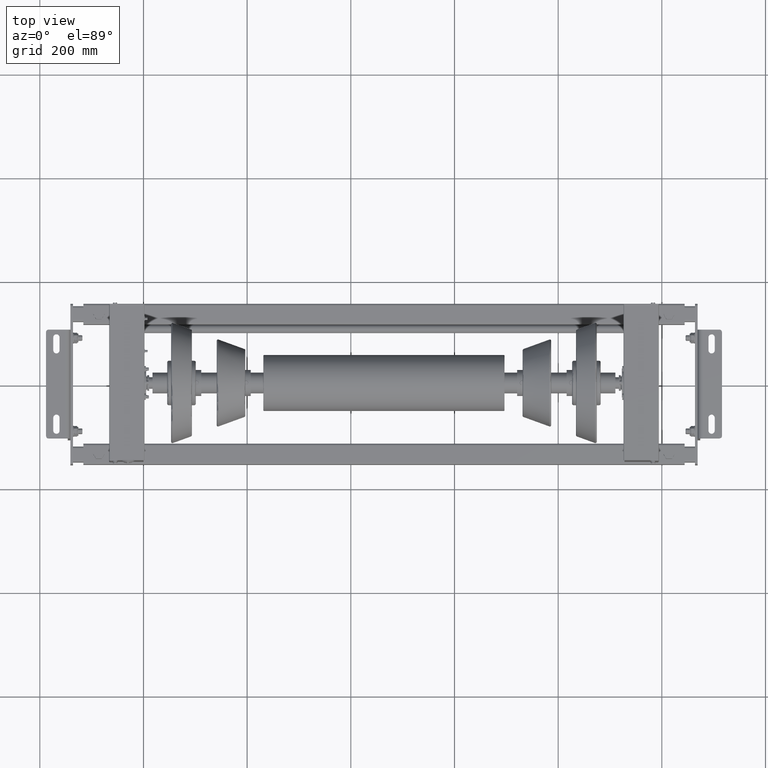
[diagram: clean part render]
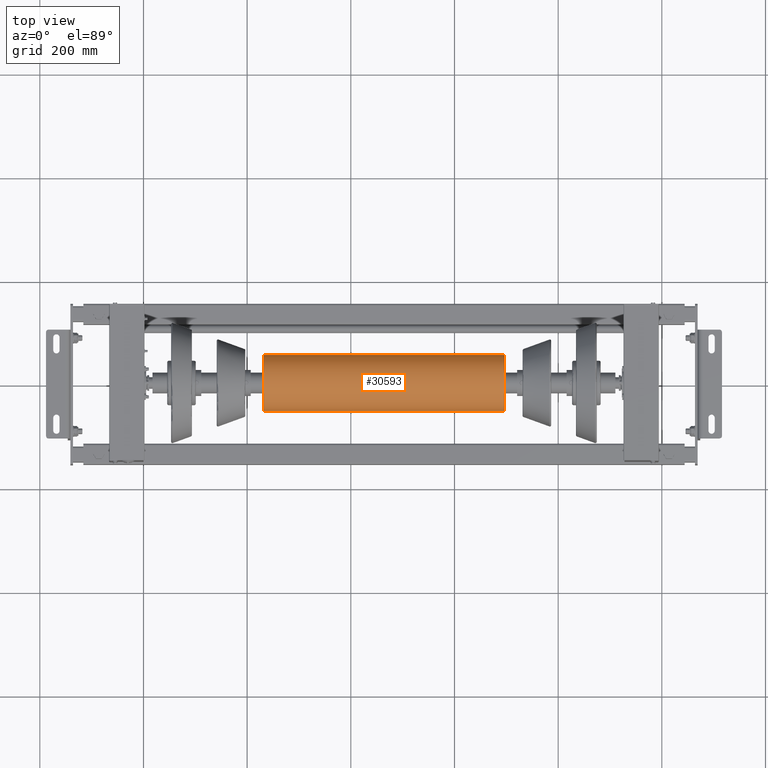
[diagram: same view with one face highlighted and labeled with its STEP entity id]
A machine part, top view. The second image highlights one B-rep face of the part: STEP entity #30593.
In plain terms, the highlighted cylindrical surface (edge-blend (fillet) strip) has radius 54 mm, axis along (1, 0, -0).
Its self-contained STEP definition (entity closure, byte-faithful):
#30419=CARTESIAN_POINT('',(231.500000000000000,-6.613093E-015,53.999999999999972));
#30420=VERTEX_POINT('',#30419);
#30428=CARTESIAN_POINT('',(231.500000000000000,-53.999999999999943,-6.613093E-015));
#30429=VERTEX_POINT('',#30428);
#30430=CARTESIAN_POINT('',(231.500000000000000,0.0,0.0));
#30431=DIRECTION('',(1.0,0.0,0.0));
#30432=DIRECTION('',(0.0,1.0,0.0));
#30433=AXIS2_PLACEMENT_3D('',#30430,#30431,#30432);
#30434=CIRCLE('',#30433,53.999999999999972);
#30435=EDGE_CURVE('',#30420,#30429,#30434,.T.);
#30452=CARTESIAN_POINT('',(231.500000000000000,53.999999999999972,0.0));
#30453=VERTEX_POINT('',#30452);
#30454=CARTESIAN_POINT('',(-231.499999999999970,53.999999999999915,0.0));
#30455=VERTEX_POINT('',#30454);
#30456=CARTESIAN_POINT('',(231.500000000000000,53.999999999999972,0.0));
#30457=DIRECTION('',(-1.0,0.0,0.0));
#30458=VECTOR('',#30457,463.0);
#30459=LINE('',#30456,#30458);
#30460=EDGE_CURVE('',#30453,#30455,#30459,.T.);
#30470=CARTESIAN_POINT('',(-231.499999999999940,-53.999999999999943,-6.613093E-015));
#30471=VERTEX_POINT('',#30470);
#30472=CARTESIAN_POINT('',(231.500000000000000,-53.999999999999943,-6.613093E-015));
#30473=DIRECTION('',(-1.0,0.0,0.0));
#30474=VECTOR('',#30473,462.999999999999940);
#30475=LINE('',#30472,#30474);
#30476=EDGE_CURVE('',#30429,#30471,#30475,.T.);
#30512=CARTESIAN_POINT('',(-231.499999999999970,-6.613093E-015,53.999999999999915));
#30513=VERTEX_POINT('',#30512);
#30514=CARTESIAN_POINT('',(-231.499999999999970,0.0,0.0));
#30515=DIRECTION('',(1.0,0.0,0.0));
#30516=DIRECTION('',(0.0,1.0,0.0));
#30517=AXIS2_PLACEMENT_3D('',#30514,#30515,#30516);
#30518=CIRCLE('',#30517,53.999999999999915);
#30519=EDGE_CURVE('',#30513,#30471,#30518,.T.);
#30563=CARTESIAN_POINT('',(-231.499999999999970,0.0,0.0));
#30564=DIRECTION('',(1.0,0.0,0.0));
#30565=DIRECTION('',(0.0,1.0,0.0));
#30566=AXIS2_PLACEMENT_3D('',#30563,#30564,#30565);
#30567=CIRCLE('',#30566,53.999999999999915);
#30568=EDGE_CURVE('',#30455,#30513,#30567,.T.);
#30574=CARTESIAN_POINT('',(0.0,0.0,0.0));
#30575=DIRECTION('',(1.0,0.0,0.0));
#30576=DIRECTION('',(0.0,1.0,0.0));
#30577=AXIS2_PLACEMENT_3D('',#30574,#30575,#30576);
#30578=CYLINDRICAL_SURFACE('',#30577,53.999999999999943);
#30579=ORIENTED_EDGE('',*,*,#30460,.T.);
#30580=ORIENTED_EDGE('',*,*,#30568,.T.);
#30581=ORIENTED_EDGE('',*,*,#30519,.T.);
#30582=ORIENTED_EDGE('',*,*,#30476,.F.);
#30583=ORIENTED_EDGE('',*,*,#30435,.F.);
#30584=CARTESIAN_POINT('',(231.500000000000000,0.0,0.0));
#30585=DIRECTION('',(1.0,0.0,0.0));
#30586=DIRECTION('',(0.0,1.0,0.0));
#30587=AXIS2_PLACEMENT_3D('',#30584,#30585,#30586);
#30588=CIRCLE('',#30587,53.999999999999972);
#30589=EDGE_CURVE('',#30453,#30420,#30588,.T.);
#30590=ORIENTED_EDGE('',*,*,#30589,.F.);
#30591=EDGE_LOOP('',(#30579,#30580,#30581,#30582,#30583,#30590));
#30592=FACE_OUTER_BOUND('',#30591,.T.);
#30593=ADVANCED_FACE('',(#30592),#30578,.T.);